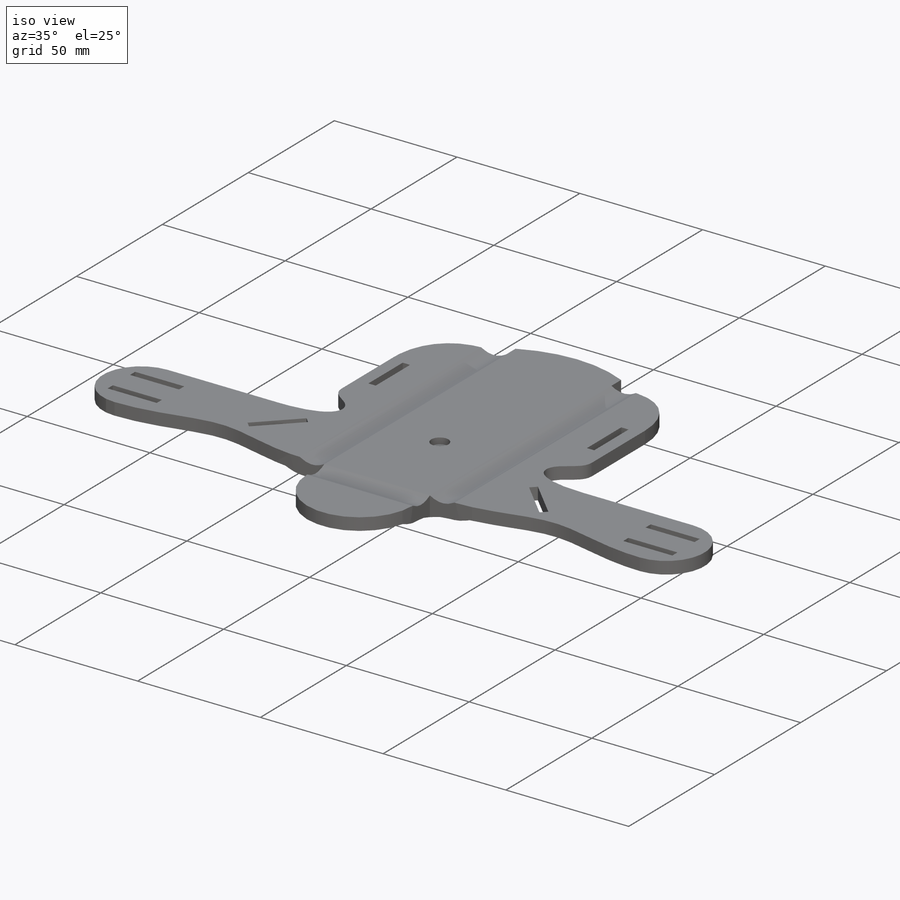
[diagram: iso view]
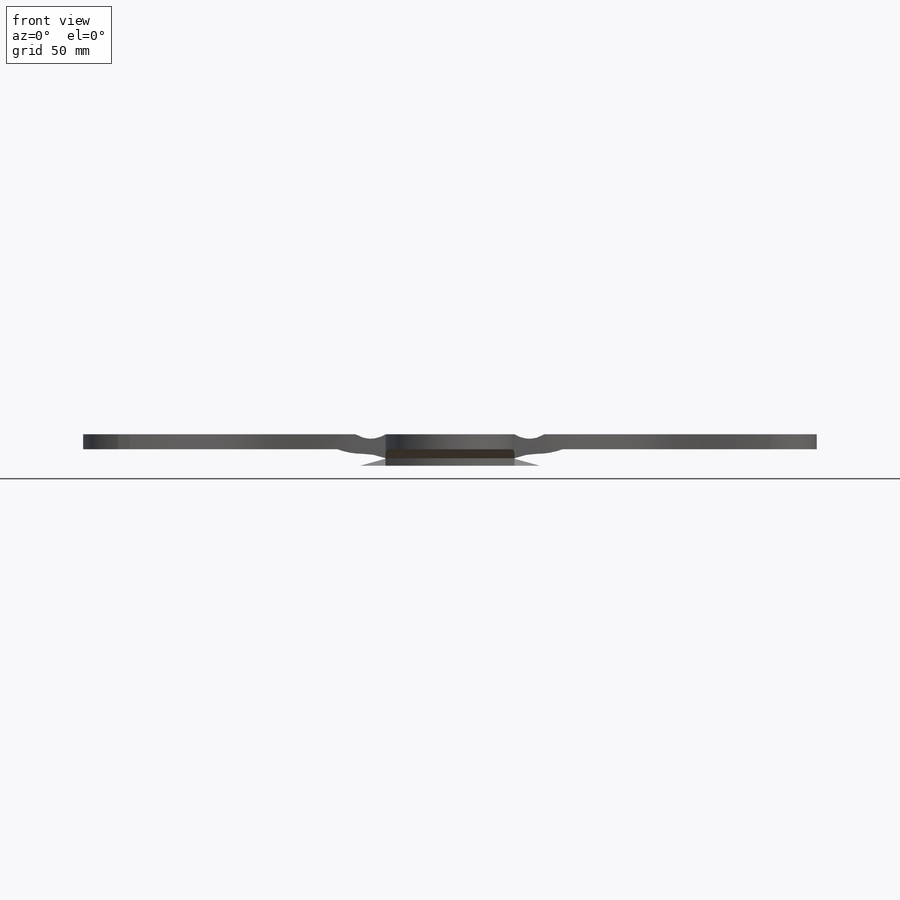
[diagram: front view]
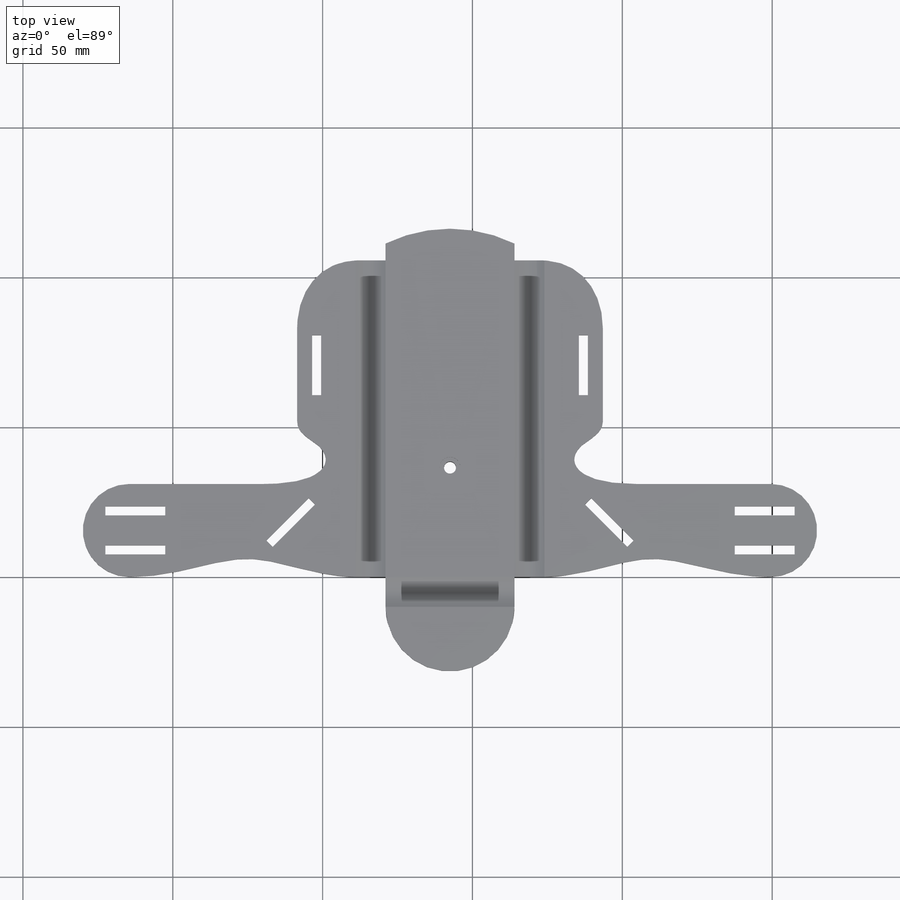
[diagram: top view]
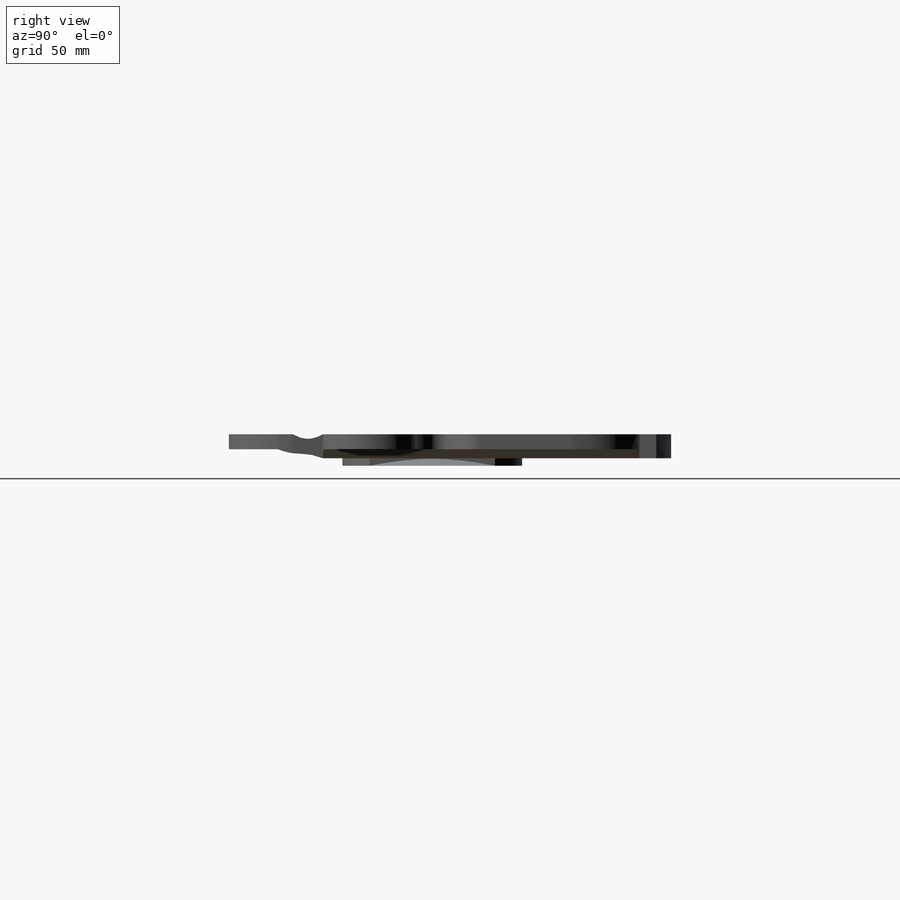
[diagram: right view]
SOLIDWORKS PART (.sldprt)
format: sldprt  version: not decoded by parser v0  size: 577,536 bytes
history: native  units: mm
features: sketch x8, cut_extrude x4, extrude x2, material x1, plane x1, revolve x1 (+13 scaffold rows collapsed)
feature tree (30):
  scaffold x13  (default folders/planes/origin — collapsed)
  material  "Material <not specified>"
  sketch  "Foot Measurements"  dims[c1.D1=33.0mm c1.D2=75.0mm c1.D3=73.0mm c1.D4=145.0mm c1.D5=33.0mm c2.D1=73.0mm c2.D3=33.0mm c2.D5=21.0mm c2.D6=21.0mm c2.D7=72.0mm c2.D8=25.0mm c3.D5=50.0mm c3.D3=33.0mm c3.D2=75.0mm c3.D6=115.0mm c3.D7=8.5mm c3.D8=12.5mm c3.D9=8.5mm c3.D10=75.0mm c4.D10=90.0deg c5.D10=12.5mm c5.D3=43.0mm c5.D1=73.0mm c5.D2=12.5mm c6.D1=83.0mm]
  sketch  "Sandal Design"  dims[c1.D11=5.0mm c1.D17=30.0mm c1.D18=10.0mm c1.D19=20.0mm c1.D20=10.0mm c1.D5=30.0mm c1.D6=5.0mm c1.D9=20.0mm c1.D13=10.0mm c1.D1=10.0mm c1.D2=16.5mm c1.D10=16.5mm c2.D9=16.5mm c2.D12=15.5mm c2.D13=15.5mm c2.D19=25.0mm c2.D24=~81.731114mm c2.D18=15.5mm c2.D23=38.0mm c2.D3=~15.190434mm c2.D1=5.0mm c2.D2=57.0mm c3.D3=90.0mm c3.D4=33.0mm c3.D5=16.0mm c3.D6=5.0mm c4.D3=57.0mm c4.D6=90.0mm c4.D7=33.0mm c4.D8=30.0mm c4.D5=90.0mm c5.D6=46.0mm c5.D8=30.0mm c5.D9=147.0mm c5.D10=46.0mm c5.D12=35.0mm c5.D13=35.0mm c5.D14=75.0mm c5.D15=5.0mm c5.D16=135.0mm c5.D17=50.0mm c5.D18=80.0mm c5.D21=41.0mm c6.D13=20.0mm c6.D22=11.0mm c6.D3=10.0mm c6.D1=33.0mm c6.D2=10.0mm c7.D3=10.0mm c7.D4=33.0mm c7.D7=57.0mm c7.D8=147.0mm c7.D10=145.0mm c7.D11=46.0mm c7.D12=46.0mm c7.D13=75.0mm c7.D14=46.0mm c7.D15=46.0mm c8.D13=21.0mm c8.D1=10.0mm c8.D3=0.0mm c8.D4=70.0mm c8.D5=7.5mm c9.D5=90.0deg c10.D5=3.0mm c10.D4=20.0mm c11.D5=3.0mm c11.D6=10.0mm c11.D7=7.5mm c11.D8=70.0mm c11.D9=10.0mm c11.D10=10.0mm c12.D9=10.0mm c12.D10=7.5mm c12.D11=7.5mm c13.D11=8.0mm c13.D3=8.5mm c13.D13=64.0mm c13.D8=70.0mm c14.D13=20.0mm c14.D14=3.0mm c14.D15=0.0mm c14.D16=~14.142136mm c15.D16=45.0deg c15.D17=15.0mm c15.D18=105.0mm c16.D17=15.0mm c16.D18=20.0mm c16.D3=13.5mm c17.D18=8.5mm c17.D20=20.0mm c17.D21=3.0mm c17.D22=5.0mm c17.D23=5.0mm c17.D8=65.0mm c17.D24=25.0mm c17.D7=7.5mm c17.D25=10.0mm c17.D26=80.5mm c17.D19=10.0mm c18.D18=31.0mm c18.D15=10.0mm c19.D18=45.0mm c19.D19=45.0mm c20.D19=90.0deg c21.D19=22.0mm c21.D22=5.0mm c21.D23=3.0mm c21.D26=5.0mm c21.D27=10.0mm c21.D3=~30.863925mm c22.D19=~18.847364mm c22.D20=~30.80815mm c22.D3=25.0mm c23.D19=20.0mm]
  extrude  "Boss-Extrude1"  Depth=8mm
  sketch  "Sketch4"  dims[D1=30.0mm D2=~41.844952mm]
  extrude  "Boss-Extrude2"  Depth=2.5mm
  sketch  "Sketch6"  dims[D1=4.0mm]
  cut_extrude  "Cut-Extrude3"  [1 undecoded]
  sketch  "Sketch7"  dims[D1=~3.398538mm]
  cut_extrude  "Cut-Extrude4"  Depth=2.5mm
  sketch  "Sketch8"  dims[c1.D3=~5.28558mm c1.D1=1.5mm c1.D2=3.0mm c2.D1=1.5mm]
  cut_extrude  "Cut-Extrude5"  Depth=10mm
  sketch  "Sketch9"  dims[c1.D2=~5.28558mm c1.D1=1.5mm c2.D2=1.5mm c2.D3=3.0mm]
  cut_extrude  "Cut-Extrude6"  Depth=10mm
  plane  "Plane1"
  sketch  "Sketch12"  dims[c1.D1=2.5mm c1.D2=2.05mm c2.D1=2.5mm c2.D2=2.5mm c3.D1=2.0mm]
  revolve  "Revolve1"  Angle=360deg
decode coverage: 14 of 15 modeling features carry decoded parameters
note: ~ marks probable driven/reference dimensions
note: 1 parameter value undecoded
note: suppression state not decoded; provenance and decode notes live in map.json
